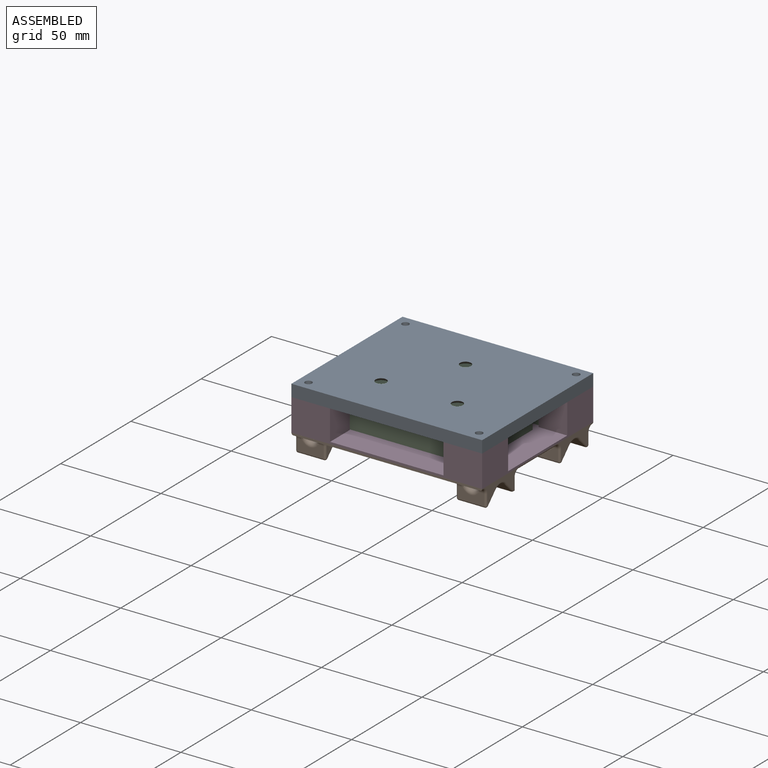
[diagram: assembled view]
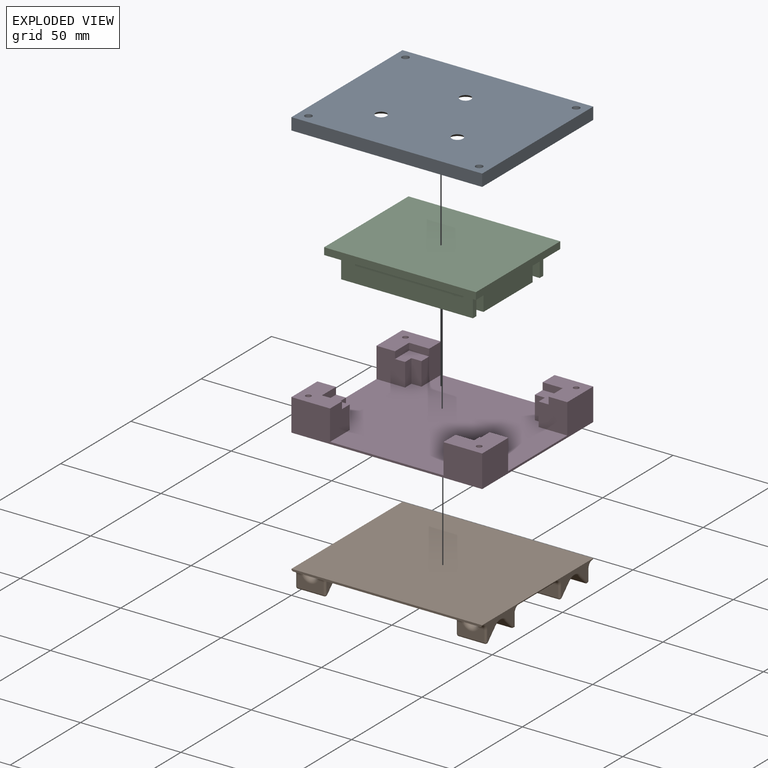
[diagram: exploded view]
GUIDED TOUR — MATED ASSEMBLY (Onshape document c68c89d04ed69b92f2d8d2c1, AutoMate assembly c68c89d04ed69b92f2d8d2c1_44991299ceca9297d4c4cc7a_9023e3a71d8ea67626e811e0_default)

This assembly has 4 components, labeled P0..P3 below (a component is one placed occurrence of a part; the same part can appear more than once), held together by 6 mates. A mate is a constraint between two components; its type names the relative motion it leaves free:
  CYLINDRICAL — leaves both rotation about and translation along the listed axis free,
  PLANAR — leaves sliding in the plane through the listed point (normal = the listed direction) and rotation about that normal free.
Axis/direction vectors are unit vectors and 'through' points are millimeter coordinates, both in the assembly's world frame.

MATES
  1. PLANAR "Planar 4": P0 <-> P3, direction (0.000, 0.000, -1.000) through (90.00, 5.00, 16.00) mm
  2. PLANAR "Planar 2": P1 <-> P3, direction (0.000, -1.000, 0.000) through (47.50, 0.00, -0.50) mm
  3. CYLINDRICAL "Cylindrical 1": P0 <-> P3, axis (0.000, 0.000, 1.000) through (90.00, 5.00, 22.00) mm
  4. CYLINDRICAL "Cylindrical 2": P0 <-> P3, axis (0.000, 0.000, -1.000) through (5.00, 74.00, 22.00) mm
  5. PLANAR "Planar 3": P3 <-> P2, direction (0.000, 0.000, 1.000) through (13.52, 66.30, 12.50) mm
  6. PLANAR "Planar 1": P3 <-> P1, direction (0.000, 0.000, -1.000) through (47.50, 39.50, 0.00) mm

ASSEMBLY ORDER
  1. P3 — the base component [order heuristic]
  2. P2 — core [order heuristic]
  3. P1 [order verified]
  4. P0 [order verified]
Order-tag legend:
  [order verified] — this step's position reverses a verified removal order: the component was checked to insert without passing through the ones already placed.
  [order heuristic] — the first 2 components form the assembly's core: parts whose collision-free extraction could not be verified, listed in mate-graph order.

Of the 4 components, 2 carry the full construction recipe — the FeatureScript program that regenerates the part's solid from scratch; the rest are supplied as boundary geometry only.
Each toured component is shown spotlighted twice — in the assembled view, then in the exploded view, where a leader line traces a displaced component back to its assembled socket (saturated green if recipe-attached, orange if geometry-only; every other component desaturated gray) — followed by its recipe or geometry summary and the mates that hold it.
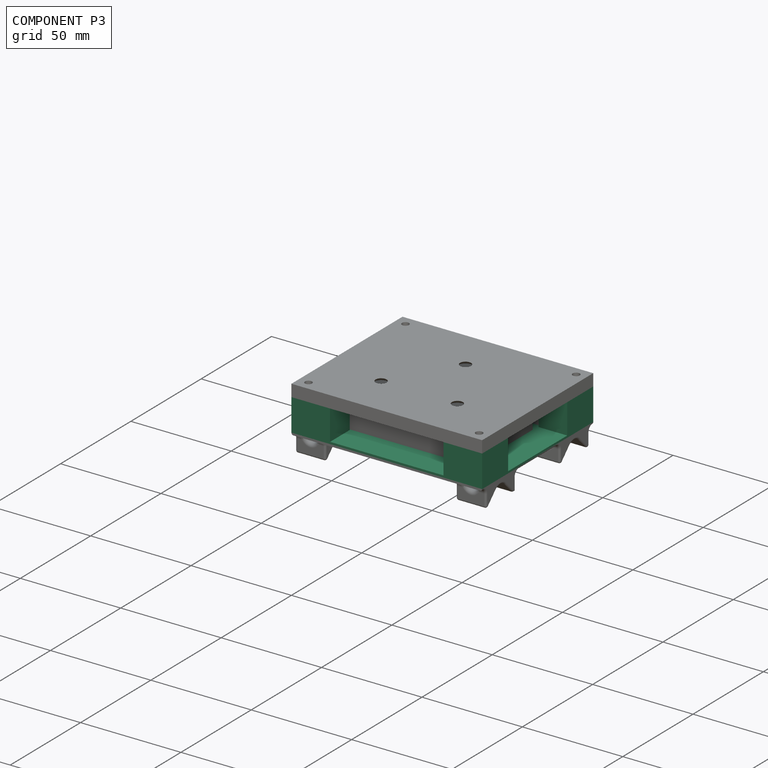
[diagram: component P3 — assembled]
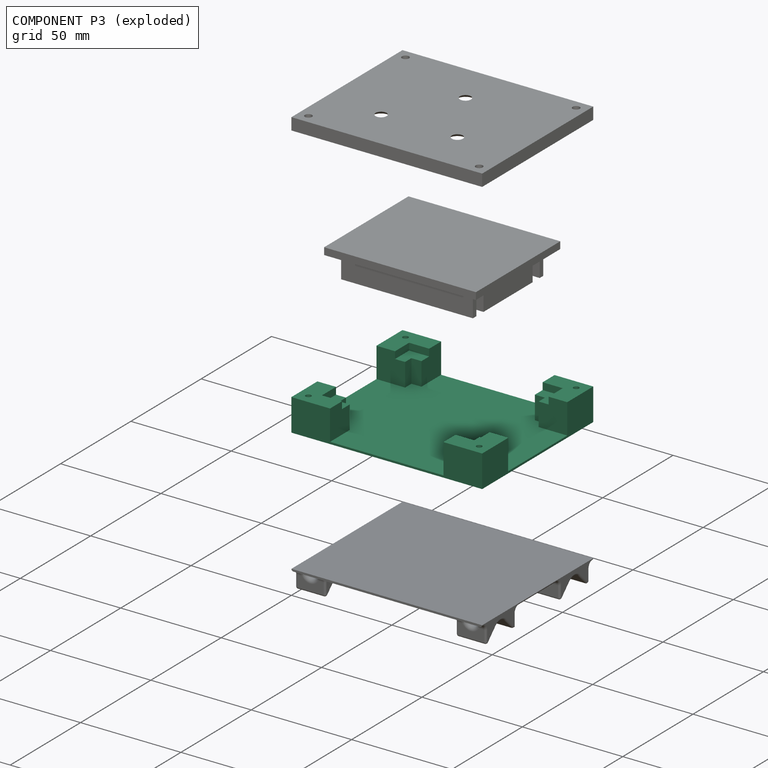
[diagram: component P3 — exploded]
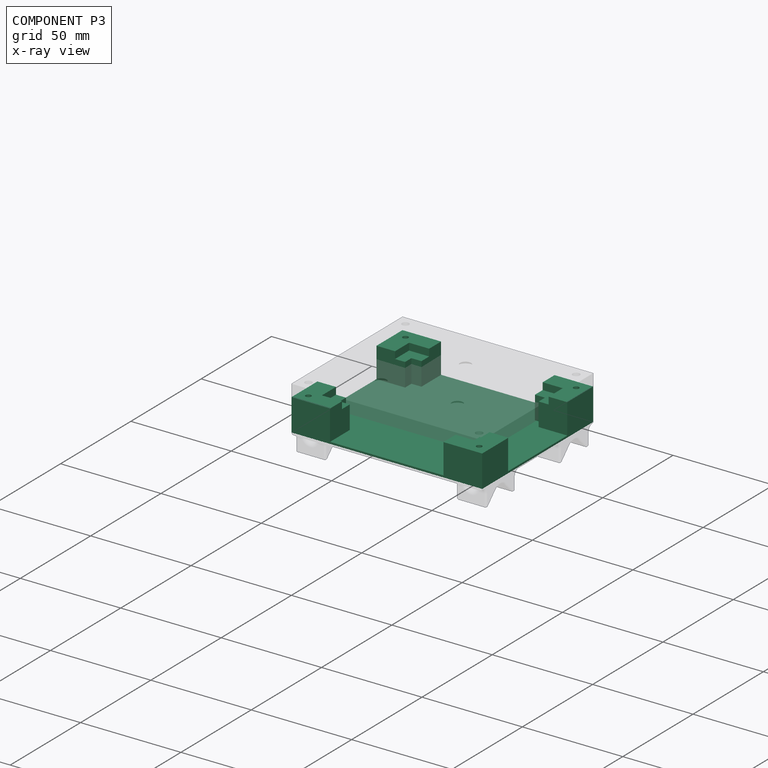
[diagram: component P3 — x-ray view]
COMPONENT P3 — recipe-attached (CADFS 00114403, mesh-verified: the recipe's output STEP matches this component's geometry to below the mesh-comparison resolution (tessellation chordal tolerance ~0.187 mm)).
Held by: PLANAR mate "Planar 4" to P0; PLANAR mate "Planar 2" to P1; CYLINDRICAL mate "Cylindrical 1" to P0; CYLINDRICAL mate "Cylindrical 2" to P0; PLANAR mate "Planar 3" to P2; PLANAR mate "Planar 1" to P1.
Construction recipe (FeatureScript — the CAD program that rebuilds this solid; sketch coordinates are in the units given by the * unit suffixes, e.g. mm):

FeatureScript 1511;
import(path : "onshape/std/geometry.fs", version : "1511.0");
import(path : "onshape/std/common.fs", version : "1511.0");
const mm = millimeter;
const VERTEX = EntityType.VERTEX;
const EDGE = EntityType.EDGE;
const FACE = EntityType.FACE;
const BODY = EntityType.BODY;
function v(x, y){return vector(x, y);}
function OD(order){return orderDisambiguation(order);}
function OSD(set){return originalSetDisambiguation(set);}
function TD(topology){return topologyDisambiguation(topology);}
function TDD(query){return trueDependencyDisambiguation(query);}
function sQuery(a, b, c) {return sketchEntityQuery(a, b, c);}

annotation { "Feature Type Name" : "Feature", "Feature Type Description" : "" }
export const myFeature = defineFeature(function(context is Context, id is Id, definition is map)
    precondition{}
    {
        {
            var Q0;
            Q0=qCreatedBy(makeId("Top.planeOp"),FACE);
            var sketch = newSketch(context, id + "F0", { "sketchPlane" : qUnion([Q0])});
            skLineSegment(sketch, "E0.bottom", {"start": v(0, 0) * mm, "end": v(95, 0) * mm});
            skLineSegment(sketch, "E0.top", {"start": v(0, 79) * mm, "end": v(95, 79) * mm});
            skLineSegment(sketch, "E0.left", {"start": v(0, 0) * mm, "end": v(0, 79) * mm});
            skLineSegment(sketch, "E0.right", {"start": v(95, 0) * mm, "end": v(95, 79) * mm});
            skSolve(sketch);
        }
        {
            var Q0;
            Q0=makeQuery(id+"F0.imprint","IMPRINT",FACE,{"disambiguationData":[TD([[makeQuery(id+"F0.imprint","IMPRINT",EDGE,{"derivedFrom":sQuery(id+"F0.wireOp",EDGE,"E0.bottom")}),1.0]])]});
            extrude(context, id + "F1", {"entities" : qUnion([Q0]), "depth" : 1 * mm});
        }
        {
            var Q0;
            Q0=makeQuery(id+"F1.opExtrude","CAP_FACE",FACE,{"disambiguationData":[OSD([sQuery(id+"F0.wireOp",EDGE,"E0.bottom"),sQuery(id+"F0.wireOp",EDGE,"E0.top"),sQuery(id+"F0.wireOp",EDGE,"E0.left"),sQuery(id+"F0.wireOp",EDGE,"E0.right")])],"isStart":false});
            var sketch = newSketch(context, id + "F2", { "sketchPlane" : qUnion([Q0])});
            skLineSegment(sketch, "E1.0", {"start": v(0, 79) * mm, "end": v(95, 79) * mm});
            skLineSegment(sketch, "E1.1", {"start": v(0, 0) * mm, "end": v(0, 79) * mm});
            skLineSegment(sketch, "E1.2", {"start": v(0, 0) * mm, "end": v(95, 0) * mm});
            skLineSegment(sketch, "E1.3", {"start": v(95, 0) * mm, "end": v(95, 79) * mm});
            skLineSegment(sketch, "E2", {"start": v(47.5, 79) * mm, "end": v(47.5, 0) * mm, "construction": true});
            skLineSegment(sketch, "E3", {"start": v(95, 39.5) * mm, "end": v(0, 39.5) * mm, "construction": true});
            skLineSegment(sketch, "E4.bottom", {"start": v(14.25, 65) * mm, "end": v(80.75, 65) * mm});
            skLineSegment(sketch, "E4.top", {"start": v(14.25, 14) * mm, "end": v(80.75, 14) * mm});
            skLineSegment(sketch, "E4.left", {"start": v(14.25, 65) * mm, "end": v(14.25, 14) * mm});
            skLineSegment(sketch, "E4.right", {"start": v(80.75, 65) * mm, "end": v(80.75, 14) * mm});
            skPoint(sketch, "E5", {"position": v(14.25, 39.5) * mm});
            skPoint(sketch, "E6", {"position": v(47.5, 65) * mm});
            skSolve(sketch);
        }
        {
            var Q0;
            Q0=makeQuery(id+"F2.imprint","IMPRINT",FACE,{"disambiguationData":[TD([[makeQuery(id+"F2.imprint","IMPRINT",EDGE,{"derivedFrom":sQuery(id+"F2.wireOp",EDGE,"E1.0")}),-1.0]])]});
            extrude(context, id + "F3", {"entities" : qUnion([Q0]), "operationType" : NewBodyOperationType.ADD, "depth" : 15 * mm});
        }
        {
            var Q0;
            Q0=makeQuery(id+"F3.opExtrude","CAP_FACE",FACE,{"disambiguationData":[OSD([sQuery(id+"F2.wireOp",EDGE,"E1.0"),sQuery(id+"F2.wireOp",EDGE,"E1.1"),sQuery(id+"F2.wireOp",EDGE,"E1.2"),sQuery(id+"F2.wireOp",EDGE,"E1.3"),sQuery(id+"F2.wireOp",EDGE,"E4.bottom"),sQuery(id+"F2.wireOp",EDGE,"E4.top"),sQuery(id+"F2.wireOp",EDGE,"E4.left"),sQuery(id+"F2.wireOp",EDGE,"E4.right")])],"isStart":false});
            var sketch = newSketch(context, id + "F4", { "sketchPlane" : qUnion([Q0])});
            skLineSegment(sketch, "E7.0.0", {"start": v(0, 79) * mm, "end": v(0, 0) * mm});
            skLineSegment(sketch, "E7.0.1", {"start": v(0, 0) * mm, "end": v(95, 0) * mm});
            skLineSegment(sketch, "E7.0.2", {"start": v(95, 0) * mm, "end": v(95, 79) * mm});
            skLineSegment(sketch, "E7.0.3", {"start": v(95, 79) * mm, "end": v(0, 79) * mm});
            skLineSegment(sketch, "E8.1", {"start": v(14.25, 65) * mm, "end": v(14.25, 14) * mm});
            skLineSegment(sketch, "E9", {"start": v(0, 39.5) * mm, "end": v(95, 39.5) * mm, "construction": true});
            skLineSegment(sketch, "E10", {"start": v(47.5, 79) * mm, "end": v(47.5, 0) * mm, "construction": true});
            skLineSegment(sketch, "E11.bottom", {"start": v(9.25, 70.5) * mm, "end": v(85.75, 70.5) * mm});
            skLineSegment(sketch, "E11.top", {"start": v(9.25, 8.5) * mm, "end": v(85.75, 8.5) * mm});
            skLineSegment(sketch, "E11.left", {"start": v(9.25, 70.5) * mm, "end": v(9.25, 8.5) * mm});
            skLineSegment(sketch, "E11.right", {"start": v(85.75, 70.5) * mm, "end": v(85.75, 8.5) * mm});
            skPoint(sketch, "E12", {"position": v(47.5, 70.5) * mm});
            skPoint(sketch, "E13", {"position": v(9.25, 39.5) * mm});
            skSolve(sketch);
        }
        {
            var Q0;
            Q0=makeQuery(id+"F4.imprint","IMPRINT",FACE,{"disambiguationData":[TD([[makeQuery(id+"F4.imprint","IMPRINT",EDGE,{"derivedFrom":sQuery(id+"F4.wireOp",EDGE,"E8.1")}),-1.0]])]});
            extrude(context, id + "F5", {"entities" : qUnion([Q0]), "operationType" : NewBodyOperationType.REMOVE, "oppositeDirection" : true, "depth" : 3.5 * mm});
        }
        {
            var Q0;
            Q0=makeQuery(id+"F3.opExtrude","CAP_FACE",FACE,{"disambiguationData":[OSD([sQuery(id+"F2.wireOp",EDGE,"E1.0"),sQuery(id+"F2.wireOp",EDGE,"E1.1"),sQuery(id+"F2.wireOp",EDGE,"E1.2"),sQuery(id+"F2.wireOp",EDGE,"E1.3"),sQuery(id+"F2.wireOp",EDGE,"E4.bottom"),sQuery(id+"F2.wireOp",EDGE,"E4.top"),sQuery(id+"F2.wireOp",EDGE,"E4.left"),sQuery(id+"F2.wireOp",EDGE,"E4.right")])],"isStart":false});
            var sketch = newSketch(context, id + "F6", { "sketchPlane" : qUnion([Q0])});
            skLineSegment(sketch, "E14.bottom", {"start": v(0, 60.5) * mm, "end": v(95, 60.5) * mm});
            skLineSegment(sketch, "E14.top", {"start": v(0, 18.5) * mm, "end": v(95, 18.5) * mm});
            skLineSegment(sketch, "E14.left", {"start": v(0, 60.5) * mm, "end": v(0, 18.5) * mm});
            skLineSegment(sketch, "E14.right", {"start": v(95, 60.5) * mm, "end": v(95, 18.5) * mm});
            skLineSegment(sketch, "E15.bottom", {"start": v(19.25, 79) * mm, "end": v(75.75, 79) * mm});
            skLineSegment(sketch, "E15.top", {"start": v(19.25, 0) * mm, "end": v(75.75, 0) * mm});
            skLineSegment(sketch, "E15.left", {"start": v(19.25, 79) * mm, "end": v(19.25, 0) * mm});
            skLineSegment(sketch, "E15.right", {"start": v(75.75, 79) * mm, "end": v(75.75, 0) * mm});
            skSolve(sketch);
        }
        {
            var Q0;
            {var subQ0=sQuery(id+"F6.wireOp",EDGE,"E15.bottom");Q0=makeQuery(id+"F6.imprint","IMPRINT",FACE,{"disambiguationData":[TD([[makeQuery(id+"F6.imprint","IMPRINT",EDGE,{"derivedFrom":subQ0}),-1.0]])]});}
            var Q1;
            {var subQ0=sQuery(id+"F6.wireOp",EDGE,"E15.left");var subQ1=sQuery(id+"F6.wireOp",EDGE,"E14.bottom");var subQ2=makeQuery(id+"F6.imprint","INTERSECT",VERTEX,{"derivedFrom":[subQ1,subQ0]});Q1=makeQuery(id+"F6.imprint","IMPRINT",FACE,{"disambiguationData":[TD([[makeQuery(id+"F6.imprint","IMPRINT",EDGE,{"disambiguationData":[TD([[subQ2,-1.0]])],"derivedFrom":subQ1}),1.0]])]});}
            var Q2;
            {var subQ0=sQuery(id+"F6.wireOp",EDGE,"E15.left");var subQ1=sQuery(id+"F6.wireOp",EDGE,"E14.bottom");var subQ2=makeQuery(id+"F6.imprint","INTERSECT",VERTEX,{"derivedFrom":[subQ1,subQ0]});Q2=makeQuery(id+"F6.imprint","IMPRINT",FACE,{"disambiguationData":[TD([[makeQuery(id+"F6.imprint","IMPRINT",EDGE,{"disambiguationData":[TD([[subQ2,1.0]])],"derivedFrom":subQ1}),-1.0]])]});}
            var Q3;
            {var subQ0=sQuery(id+"F6.wireOp",EDGE,"E14.left");Q3=makeQuery(id+"F6.imprint","IMPRINT",FACE,{"disambiguationData":[TD([[makeQuery(id+"F6.imprint","IMPRINT",EDGE,{"derivedFrom":subQ0}),-1.0]])]});}
            var Q4;
            {var subQ0=sQuery(id+"F6.wireOp",EDGE,"E14.right");Q4=makeQuery(id+"F6.imprint","IMPRINT",FACE,{"disambiguationData":[TD([[makeQuery(id+"F6.imprint","IMPRINT",EDGE,{"derivedFrom":subQ0}),1.0]])]});}
            var Q5;
            {var subQ0=sQuery(id+"F6.wireOp",EDGE,"E15.right");var subQ1=sQuery(id+"F6.wireOp",EDGE,"E14.bottom");var subQ2=makeQuery(id+"F6.imprint","INTERSECT",VERTEX,{"derivedFrom":[subQ1,subQ0]});Q5=makeQuery(id+"F6.imprint","IMPRINT",FACE,{"disambiguationData":[TD([[makeQuery(id+"F6.imprint","IMPRINT",EDGE,{"disambiguationData":[TD([[subQ2,-1.0]])],"derivedFrom":subQ1}),-1.0]])]});}
            var Q6;
            {var subQ0=sQuery(id+"F6.wireOp",EDGE,"E15.top");Q6=makeQuery(id+"F6.imprint","IMPRINT",FACE,{"disambiguationData":[TD([[makeQuery(id+"F6.imprint","IMPRINT",EDGE,{"derivedFrom":subQ0}),1.0]])]});}
            var Q7;
            {var subQ0=sQuery(id+"F6.wireOp",EDGE,"E15.left");var subQ1=sQuery(id+"F6.wireOp",EDGE,"E14.top");var subQ2=makeQuery(id+"F6.imprint","INTERSECT",VERTEX,{"derivedFrom":[subQ1,subQ0]});Q7=makeQuery(id+"F6.imprint","IMPRINT",FACE,{"disambiguationData":[TD([[makeQuery(id+"F6.imprint","IMPRINT",EDGE,{"disambiguationData":[TD([[subQ2,-1.0]])],"derivedFrom":subQ1}),-1.0]])]});}
            var Q8;
            Q8=makeQuery(id+"F1.opExtrude","CAP_FACE",FACE,{"disambiguationData":[OSD([sQuery(id+"F0.wireOp",EDGE,"E0.bottom"),sQuery(id+"F0.wireOp",EDGE,"E0.top"),sQuery(id+"F0.wireOp",EDGE,"E0.left"),sQuery(id+"F0.wireOp",EDGE,"E0.right")])],"isStart":false});
            extrude(context, id + "F7", {"entities" : qUnion([Q0, Q1, Q2, Q3, Q4, Q5, Q6, Q7]), "operationType" : NewBodyOperationType.REMOVE, "endBound" : BoundingType.UP_TO_SURFACE, "oppositeDirection" : true, "endBoundEntityFace" : qUnion([Q8]), "depth" : 25 * mm});
        }
        {
            var Q0;
            {var subQ0=sQuery(id+"F2.wireOp",EDGE,"E1.1");var subQ1=sQuery(id+"F4.wireOp",EDGE,"E11.left");var subQ2=sQuery(id+"F2.wireOp",EDGE,"E1.0");var subQ4=sQuery(id+"F6.wireOp",EDGE,"E15.left");var subQ5=sQuery(id+"F6.wireOp",EDGE,"E14.bottom");var subQ6=makeQuery(id+"F6.imprint","INTERSECT",VERTEX,{"derivedFrom":[subQ5,subQ4]});var subQ8=makeQuery(id+"F6.imprint","INTERSECT",VERTEX,{"derivedFrom":[makeQuery(id+"F5.boolean.opBoolean","COPY",EDGE,{"derivedFrom":makeQuery(id+"F5.opExtrude","CAP_EDGE",EDGE,{"disambiguationData":[OSD([subQ1])],"isStart":true})}),subQ5]});Q0=makeQuery(id+"F7.boolean.opBoolean","SPLIT",FACE,{"disambiguationData":[TD([makeQuery(id+"F7.opExtrude","SWEPT_FACE",FACE,{"disambiguationData":[OSD([subQ5]),TDD([makeQuery(id+"F6.imprint","IMPRINT",EDGE,{"disambiguationData":[TD([[subQ8,1.0]])],"derivedFrom":subQ5}),makeQuery(id+"F6.imprint","IMPRINT",EDGE,{"disambiguationData":[TD([[subQ6,1.0]])],"derivedFrom":subQ5})])]})])],"derivedFrom":makeQuery(id+"F3.opExtrude","CAP_FACE",FACE,{"disambiguationData":[OSD([subQ2,subQ0,sQuery(id+"F2.wireOp",EDGE,"E1.2"),sQuery(id+"F2.wireOp",EDGE,"E1.3"),sQuery(id+"F2.wireOp",EDGE,"E4.bottom"),sQuery(id+"F2.wireOp",EDGE,"E4.top"),sQuery(id+"F2.wireOp",EDGE,"E4.left"),sQuery(id+"F2.wireOp",EDGE,"E4.right")])],"isStart":false})});}
            var sketch = newSketch(context, id + "F8", { "sketchPlane" : qUnion([Q0])});
            skLineSegment(sketch, "E16.bottom", {"start": v(5, 74) * mm, "end": v(90, 74) * mm, "construction": true});
            skLineSegment(sketch, "E16.top", {"start": v(5, 5) * mm, "end": v(90, 5) * mm, "construction": true});
            skLineSegment(sketch, "E16.left", {"start": v(5, 74) * mm, "end": v(5, 5) * mm, "construction": true});
            skLineSegment(sketch, "E16.right", {"start": v(90, 74) * mm, "end": v(90, 5) * mm, "construction": true});
            skCircle(sketch, "E17", {"center": v(5, 74) * mm, "radius": 1.35 * mm});
            skLineSegment(sketch, "E18.0", {"start": v(75.75, 79) * mm, "end": v(19.25, 79) * mm, "construction": true});
            skLineSegment(sketch, "E19", {"start": v(47.5, 79) * mm, "end": v(47.5, 0) * mm, "construction": true});
            skCircle(sketch, "E20", {"center": v(5, 5) * mm, "radius": 1.35 * mm});
            skCircle(sketch, "E21.MirrorC", {"center": v(90, 5) * mm, "radius": 1.35 * mm});
            skCircle(sketch, "E22.MirrorC", {"center": v(90, 74) * mm, "radius": 1.35 * mm});
            skSolve(sketch);
        }
        {
            var Q0;
            Q0 = qSketchRegion(id + "F8", true);
            extrude(context, id + "F9", {"entities" : qUnion([Q0]), "operationType" : NewBodyOperationType.REMOVE, "endBound" : BoundingType.THROUGH_ALL, "oppositeDirection" : true, "depth" : 25 * mm});
        }
    });
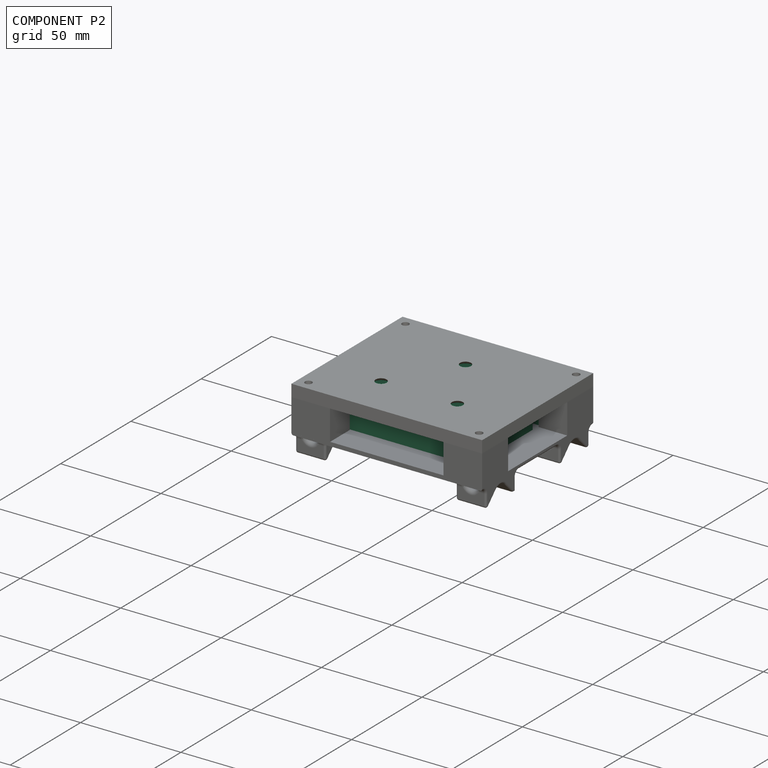
[diagram: component P2 — assembled]
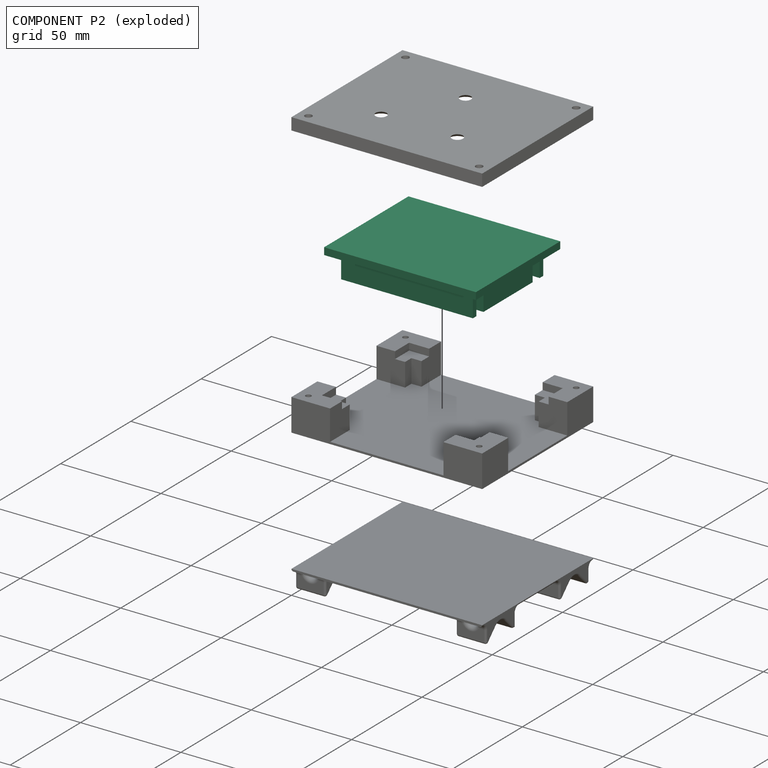
[diagram: component P2 — exploded]
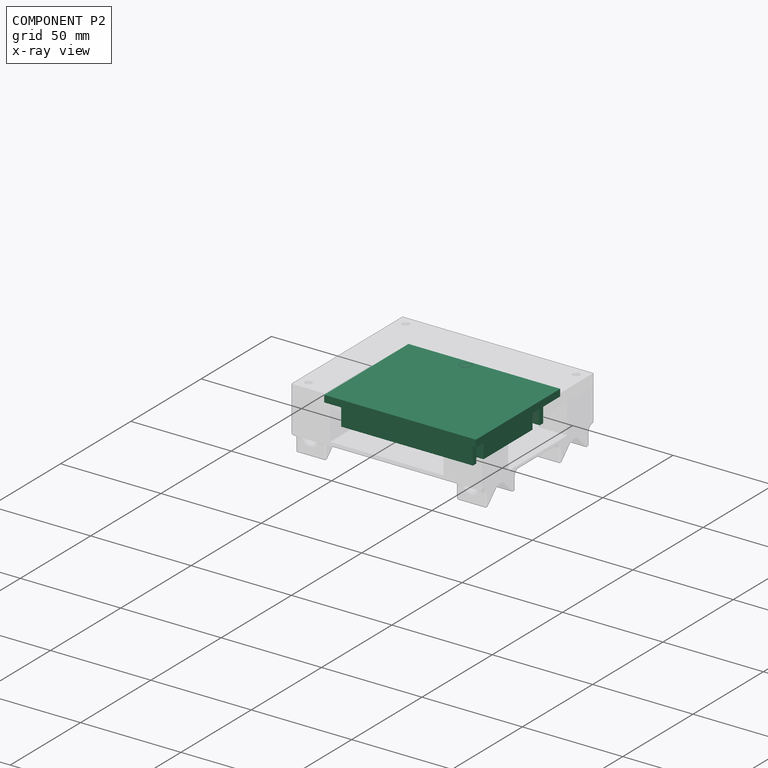
[diagram: component P2 — x-ray view]
COMPONENT P2 — recipe-attached (CADFS 00114395, mesh-verified: the recipe's output STEP matches this component's geometry to below the mesh-comparison resolution (tessellation chordal tolerance ~0.147 mm)).
Held by: PLANAR mate "Planar 3" to P3.
Construction recipe (FeatureScript — the CAD program that rebuilds this solid; sketch coordinates are in the units given by the * unit suffixes, e.g. mm):

FeatureScript 1511;
import(path : "onshape/std/geometry.fs", version : "1511.0");
import(path : "onshape/std/common.fs", version : "1511.0");
const mm = millimeter;
const VERTEX = EntityType.VERTEX;
const EDGE = EntityType.EDGE;
const FACE = EntityType.FACE;
const BODY = EntityType.BODY;
function v(x, y){return vector(x, y);}
function OD(order){return orderDisambiguation(order);}
function OSD(set){return originalSetDisambiguation(set);}
function TD(topology){return topologyDisambiguation(topology);}
function TDD(query){return trueDependencyDisambiguation(query);}
function sQuery(a, b, c) {return sketchEntityQuery(a, b, c);}

annotation { "Feature Type Name" : "Feature", "Feature Type Description" : "" }
export const myFeature = defineFeature(function(context is Context, id is Id, definition is map)
    precondition{}
    {
        {
            var Q0;
            Q0=qCreatedBy(makeId("Top.planeOp"),FACE);
            var sketch = newSketch(context, id + "F0", { "sketchPlane" : qUnion([Q0])});
            skLineSegment(sketch, "E0.bottom", {"start": v(0, 0) * mm, "end": v(75.6, 0) * mm});
            skLineSegment(sketch, "E0.top", {"start": v(0, 60) * mm, "end": v(75.6, 60) * mm});
            skLineSegment(sketch, "E0.left", {"start": v(0, 0) * mm, "end": v(0, 60) * mm});
            skLineSegment(sketch, "E0.right", {"start": v(75.6, 0) * mm, "end": v(75.6, 60) * mm});
            skSolve(sketch);
        }
        {
            var Q0;
            Q0=makeQuery(id+"F0.imprint","IMPRINT",FACE,{"disambiguationData":[TD([[makeQuery(id+"F0.imprint","IMPRINT",EDGE,{"derivedFrom":sQuery(id+"F0.wireOp",EDGE,"E0.bottom")}),1.0]])]});
            extrude(context, id + "F1", {"entities" : qUnion([Q0]), "depth" : 3.5 * mm});
        }
        {
            var Q0;
            Q0=makeQuery(id+"F1.opExtrude","CAP_FACE",FACE,{"disambiguationData":[OSD([sQuery(id+"F0.wireOp",EDGE,"E0.bottom"),sQuery(id+"F0.wireOp",EDGE,"E0.top"),sQuery(id+"F0.wireOp",EDGE,"E0.left"),sQuery(id+"F0.wireOp",EDGE,"E0.right")])],"isStart":false});
            var sketch = newSketch(context, id + "F2", { "sketchPlane" : qUnion([Q0])});
            skLineSegment(sketch, "E1.0", {"start": v(5, 55) * mm, "end": v(5, 5) * mm});
            skLineSegment(sketch, "E1.1", {"start": v(70.6, 55) * mm, "end": v(5, 55) * mm});
            skLineSegment(sketch, "E1.2", {"start": v(70.6, 5) * mm, "end": v(70.6, 55) * mm});
            skLineSegment(sketch, "E1.3", {"start": v(5, 5) * mm, "end": v(70.6, 5) * mm});
            skSolve(sketch);
        }
        {
            var Q0;
            Q0=makeQuery(id+"F2.imprint","IMPRINT",FACE,{"disambiguationData":[TD([[makeQuery(id+"F2.imprint","IMPRINT",EDGE,{"derivedFrom":sQuery(id+"F2.wireOp",EDGE,"E1.0")}),1.0]])]});
            extrude(context, id + "F3", {"entities" : qUnion([Q0]), "operationType" : NewBodyOperationType.ADD, "depth" : 11.5 * mm});
        }
        {
            var Q0;
            Q0=makeQuery(id+"F3.opExtrude","CAP_FACE",FACE,{"disambiguationData":[OSD([sQuery(id+"F2.wireOp",EDGE,"E1.0"),sQuery(id+"F2.wireOp",EDGE,"E1.1"),sQuery(id+"F2.wireOp",EDGE,"E1.2"),sQuery(id+"F2.wireOp",EDGE,"E1.3")])],"isStart":false});
            var sketch = newSketch(context, id + "F4", { "sketchPlane" : qUnion([Q0])});
            skLineSegment(sketch, "E2.bottom", {"start": v(5, 12.5) * mm, "end": v(70.6, 12.5) * mm});
            skLineSegment(sketch, "E2.top", {"start": v(5, 7.5) * mm, "end": v(70.6, 7.5) * mm});
            skLineSegment(sketch, "E2.left", {"start": v(5, 12.5) * mm, "end": v(5, 7.5) * mm});
            skLineSegment(sketch, "E2.right", {"start": v(70.6, 12.5) * mm, "end": v(70.6, 7.5) * mm});
            skLineSegment(sketch, "E3", {"start": v(5, 30) * mm, "end": v(70.6, 30) * mm, "construction": true});
            skLineSegment(sketch, "E4.MirrorCS", {"start": v(70.6, 47.5) * mm, "end": v(70.6, 52.5) * mm});
            skLineSegment(sketch, "E5.MirrorCS", {"start": v(5, 47.5) * mm, "end": v(5, 52.5) * mm});
            skLineSegment(sketch, "E6.MirrorCS", {"start": v(5, 52.5) * mm, "end": v(70.6, 52.5) * mm});
            skLineSegment(sketch, "E7.MirrorCS", {"start": v(5, 47.5) * mm, "end": v(70.6, 47.5) * mm});
            skSolve(sketch);
        }
        {
            var Q0;
            Q0=makeQuery(id+"F4.imprint","IMPRINT",FACE,{"disambiguationData":[TD([[makeQuery(id+"F4.imprint","IMPRINT",EDGE,{"derivedFrom":sQuery(id+"F4.wireOp",EDGE,"E4.MirrorCS")}),1.0]])]});
            var Q1;
            Q1=makeQuery(id+"F4.imprint","IMPRINT",FACE,{"disambiguationData":[TD([[makeQuery(id+"F4.imprint","IMPRINT",EDGE,{"derivedFrom":sQuery(id+"F4.wireOp",EDGE,"E2.bottom")}),-1.0]])]});
            extrude(context, id + "F5", {"entities" : qUnion([Q0, Q1]), "operationType" : NewBodyOperationType.REMOVE, "oppositeDirection" : true, "depth" : 11 * mm});
        }
    });
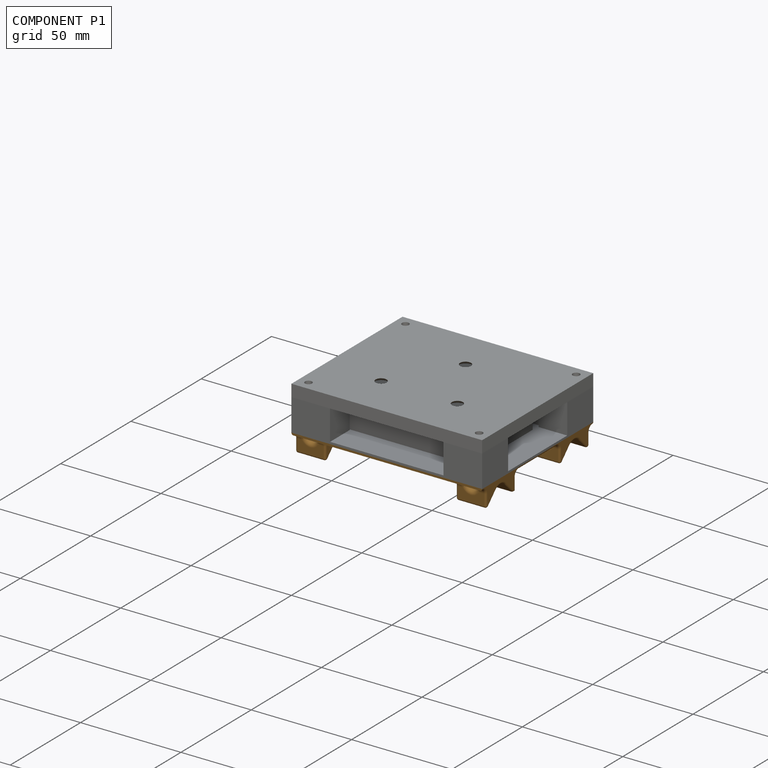
[diagram: component P1 — assembled]
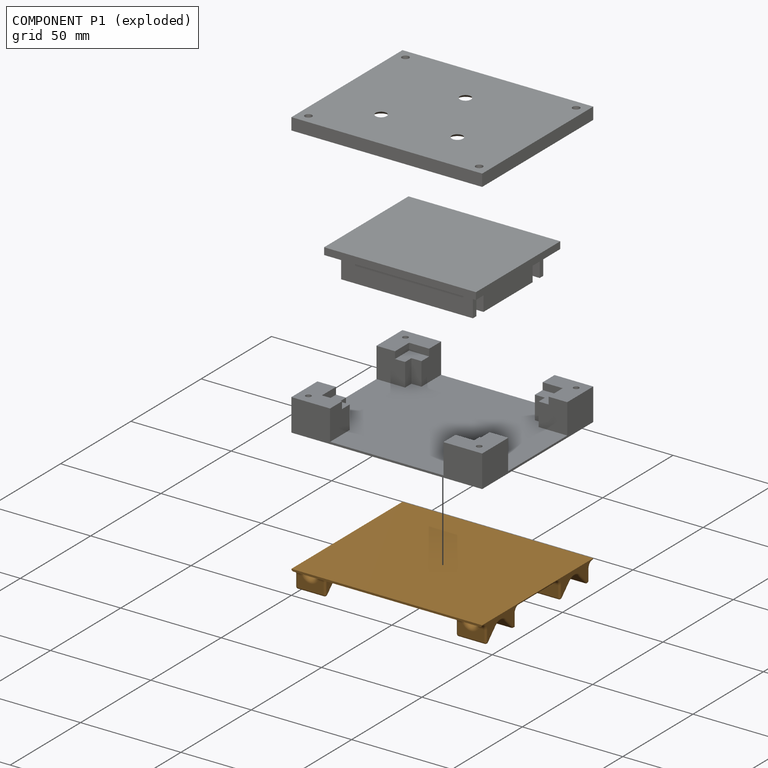
[diagram: component P1 — exploded]
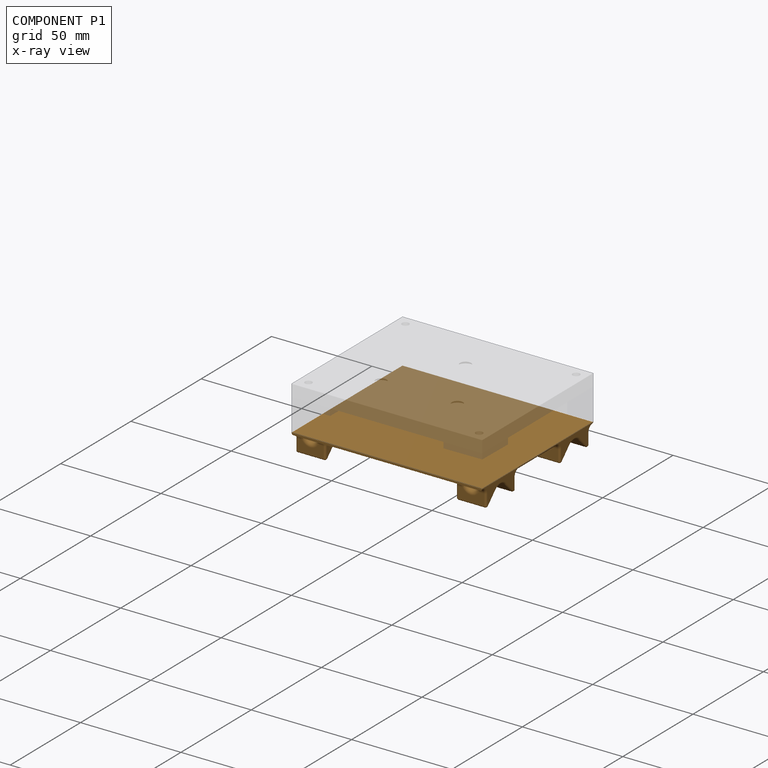
[diagram: component P1 — x-ray view]
COMPONENT P1 — geometry summary (no construction recipe available for this part):
  bounding box: 95.5 x 80.6 x 11.5 mm
  B-rep topology: 1 solid, 242 faces, 1143 edges
  volume: 13212 mm^3 (15% of its bounding box)
  symmetry: 2-fold rotationally symmetric about the z axis; mirror-symmetric across its x mid-plane, y mid-plane
Held by: PLANAR mate "Planar 2" to P3; PLANAR mate "Planar 1" to P3.
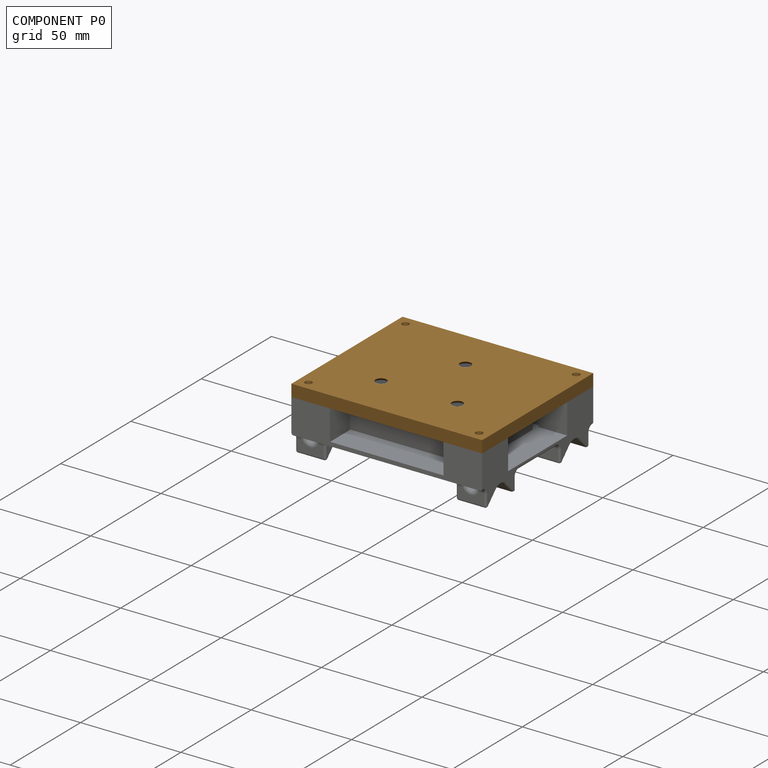
[diagram: component P0 — assembled]
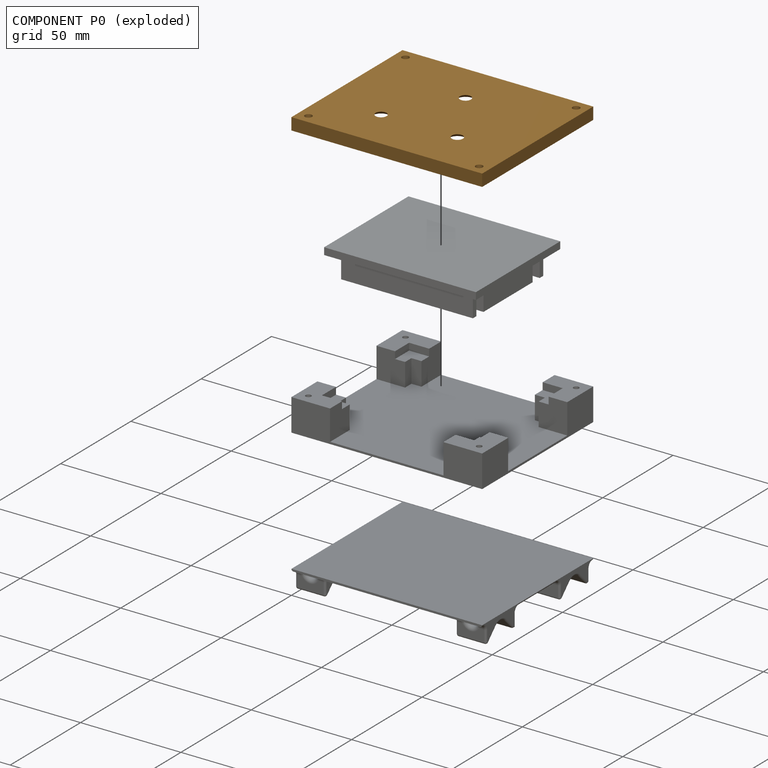
[diagram: component P0 — exploded]
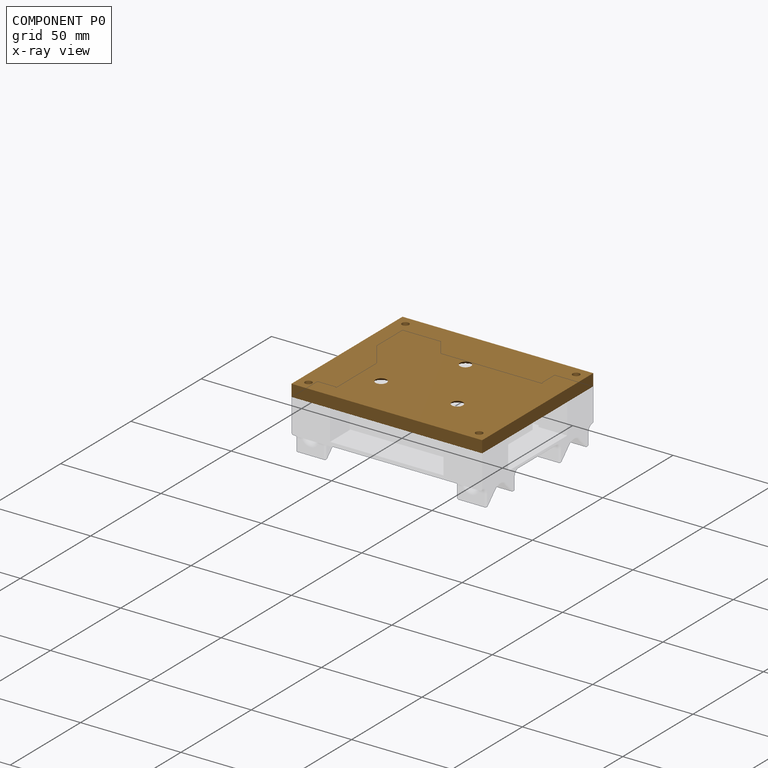
[diagram: component P0 — x-ray view]
COMPONENT P0 — geometry summary (no construction recipe available for this part):
  bounding box: 95.0 x 79.0 x 6.5 mm
  B-rep topology: 1 solid, 62 faces, 310 edges
  volume: 21305 mm^3 (44% of its bounding box)
  symmetry: mirror-symmetric across its x mid-plane
Held by: PLANAR mate "Planar 4" to P3; CYLINDRICAL mate "Cylindrical 1" to P3; CYLINDRICAL mate "Cylindrical 2" to P3.
PROVENANCE & LICENSES
Assembly (occurrences, transforms, mates, per-part STEP geometry): AutoMate dataset, Zenodo record 7776208, CC0.
Construction recipes: CADFS (HuggingFace VladPyatov/CADFS, CC-BY-4.0, layered over the ABC dataset), FeatureScript reconstruction programs keyed by ABC model id.
Join: ABC meta listings map ABC model id -> Onshape documentId; within a shared document, parts are matched by geometric signature (bounding-box dims + volume at 0.1% relative tolerance, exact B-rep face/solid counts).
Verification: 2 of this assembly's 4 components carry a recipe attachment, and every attachment is mesh-verified: the CADFS STEP and the AutoMate member STEP were compared as meshes in their shared local frame (symmetric sampled-point-to-mesh distance); worst across the 2 attachments: below the mesh-comparison resolution (tessellation chordal tolerance ~0.187 mm) on a 125 mm part.
Renders: orthographic iso camera (az 35 / el 25); the floor grid conveys scale (grid pitch printed in each image; no ruler). In the exploded view each component is displaced by its stored offset vector: the offsets alone carry the explosion direction (mate normal/axis signs are not orientation cues and do not encode it), and separation distances are assigned per mate-chain, not proportionally to assembly-order depth.
